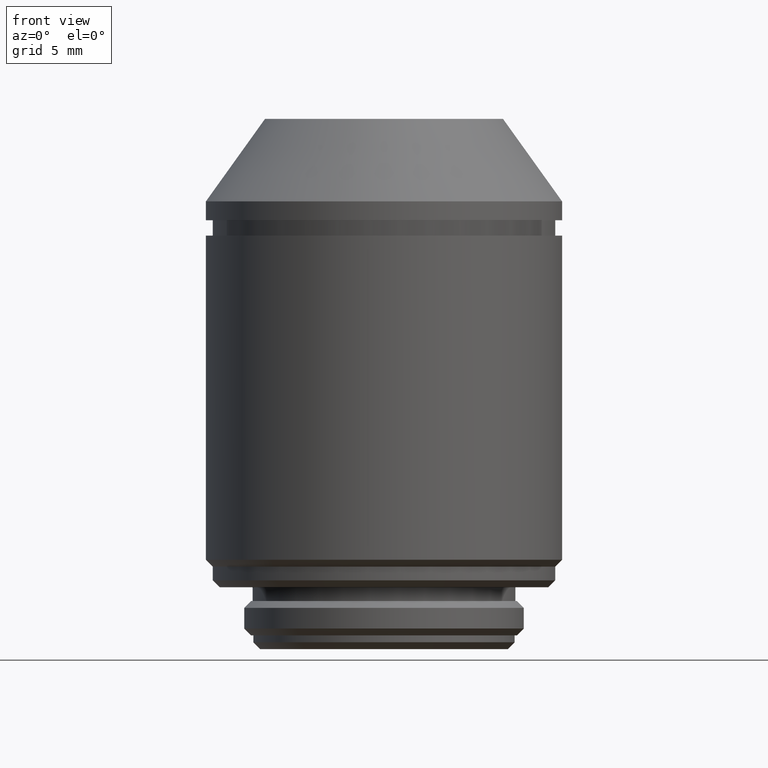
[diagram: clean part render]
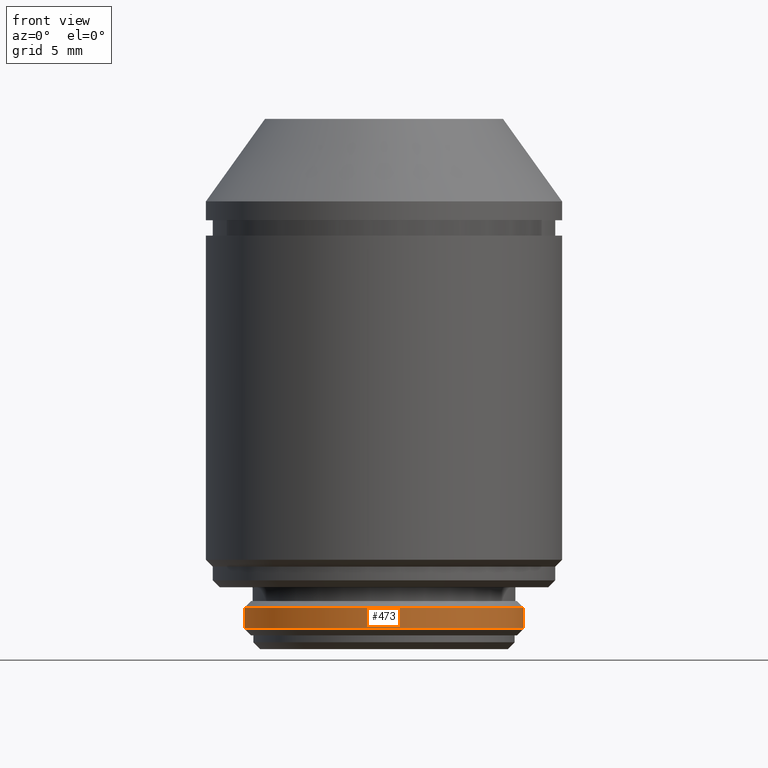
[diagram: same view with one face highlighted and labeled with its STEP entity id]
A machine part, front view. The second image highlights one B-rep face of the part: STEP entity #473.
In plain terms, the highlighted cylindrical surface (partial cylindrical patch) has radius 10.16 mm, axis along (0, 0, 1).
Its self-contained STEP definition (entity closure, byte-faithful):
#61 = LINE ( 'NONE', #580, #833 ) ;
#106 = ORIENTED_EDGE ( 'NONE', *, *, #486, .T. ) ;
#132 = EDGE_CURVE ( 'NONE', #763, #464, #814, .T. ) ;
#157 = DIRECTION ( 'NONE',  ( 0.000000000000000000, 0.000000000000000000, 1.000000000000000000 ) ) ;
#163 = FACE_OUTER_BOUND ( 'NONE', #664, .T. ) ;
#168 = DIRECTION ( 'NONE',  ( -1.000000000000000000, 0.000000000000000000, 0.000000000000000000 ) ) ;
#181 = CARTESIAN_POINT ( 'NONE',  ( 0.000000000000000000, 0.000000000000000000, 0.8900000000000034550 ) ) ;
#196 = EDGE_CURVE ( 'NONE', #701, #464, #61, .T. ) ;
#225 = DIRECTION ( 'NONE',  ( 0.000000000000000000, 0.000000000000000000, 1.000000000000000000 ) ) ;
#232 = CYLINDRICAL_SURFACE ( 'NONE', #1085, 10.16000000000000014 ) ;
#238 = CARTESIAN_POINT ( 'NONE',  ( 10.16000000000000014, 0.000000000000000000, 0.000000000000000000 ) ) ;
#254 = CARTESIAN_POINT ( 'NONE',  ( 0.000000000000000000, 0.000000000000000000, 0.000000000000000000 ) ) ;
#283 = ORIENTED_EDGE ( 'NONE', *, *, #196, .F. ) ;
#305 = DIRECTION ( 'NONE',  ( 0.000000000000000000, 0.000000000000000000, -1.000000000000000000 ) ) ;
#372 = AXIS2_PLACEMENT_3D ( 'NONE', #181, #520, #168 ) ;
#464 = VERTEX_POINT ( 'NONE', #747 ) ;
#473 = ADVANCED_FACE ( 'NONE', ( #163 ), #232, .T. ) ;
#486 = EDGE_CURVE ( 'NONE', #985, #763, #987, .T. ) ;
#520 = DIRECTION ( 'NONE',  ( -0.000000000000000000, -0.000000000000000000, 1.000000000000000000 ) ) ;
#526 = ORIENTED_EDGE ( 'NONE', *, *, #132, .T. ) ;
#574 = DIRECTION ( 'NONE',  ( 1.000000000000000000, 0.000000000000000000, 0.000000000000000000 ) ) ;
#580 = CARTESIAN_POINT ( 'NONE',  ( -10.16000000000000014, 1.244241147933710864E-15, 0.000000000000000000 ) ) ;
#602 = VECTOR ( 'NONE', #807, 1000.000000000000000 ) ;
#645 = DIRECTION ( 'NONE',  ( -1.000000000000000000, 0.000000000000000000, 0.000000000000000000 ) ) ;
#654 = CARTESIAN_POINT ( 'NONE',  ( -10.16000000000000014, 1.244241147933710864E-15, 0.8900000000000034550 ) ) ;
#664 = EDGE_LOOP ( 'NONE', ( #283, #1005, #106, #526 ) ) ;
#681 = CARTESIAN_POINT ( 'NONE',  ( 10.16000000000000014, 0.000000000000000000, 2.389999999999998792 ) ) ;
#701 = VERTEX_POINT ( 'NONE', #654 ) ;
#747 = CARTESIAN_POINT ( 'NONE',  ( -10.16000000000000014, 1.244241147933710864E-15, 2.389999999999998792 ) ) ;
#763 = VERTEX_POINT ( 'NONE', #681 ) ;
#807 = DIRECTION ( 'NONE',  ( 0.000000000000000000, 0.000000000000000000, 1.000000000000000000 ) ) ;
#814 = CIRCLE ( 'NONE', #1061, 10.16000000000000014 ) ;
#833 = VECTOR ( 'NONE', #157, 1000.000000000000000 ) ;
#858 = EDGE_CURVE ( 'NONE', #701, #985, #927, .T. ) ;
#927 = CIRCLE ( 'NONE', #372, 10.16000000000000014 ) ;
#978 = CARTESIAN_POINT ( 'NONE',  ( 10.16000000000000014, 0.000000000000000000, 0.8900000000000034550 ) ) ;
#985 = VERTEX_POINT ( 'NONE', #978 ) ;
#987 = LINE ( 'NONE', #238, #602 ) ;
#1005 = ORIENTED_EDGE ( 'NONE', *, *, #858, .T. ) ;
#1054 = CARTESIAN_POINT ( 'NONE',  ( 0.000000000000000000, 0.000000000000000000, 2.389999999999998792 ) ) ;
#1061 = AXIS2_PLACEMENT_3D ( 'NONE', #1054, #305, #645 ) ;
#1085 = AXIS2_PLACEMENT_3D ( 'NONE', #254, #225, #574 ) ;